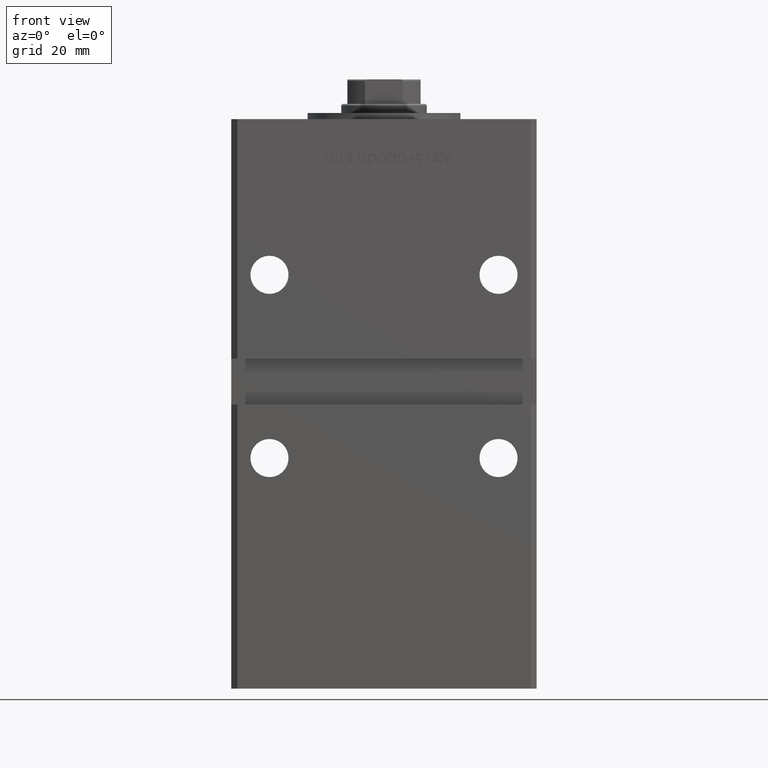
[diagram: clean part render]
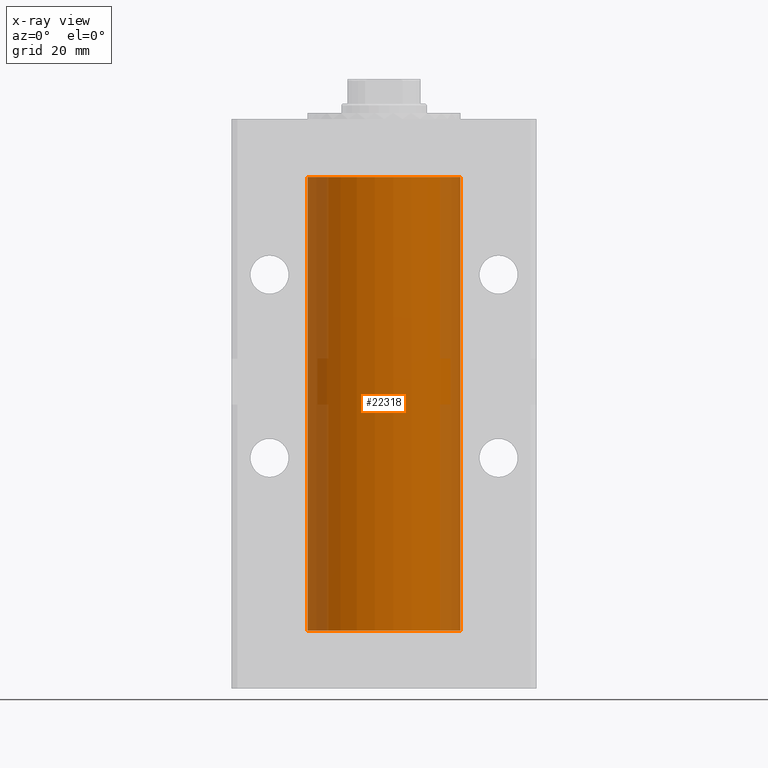
[diagram: x-ray — body ghosted, one internal face saturated and labeled with its STEP entity id]
A machine part, front view, then the same camera in x-ray: the body is ghosted and one INTERNAL B-rep face — a face not visible from any outside direction — is saturated and labeled: STEP entity #22318.
In plain terms, the highlighted cylindrical surface (partial cylindrical patch) has radius 25 mm, axis along (-0, -0, -1).
Its self-contained STEP definition (entity closure, byte-faithful):
#79 = CARTESIAN_POINT ( 'NONE',  ( -25.00000000000000000, 0.000000000000000000, 148.5000000000000000 ) ) ;
#316 = DIRECTION ( 'NONE',  ( 1.000000000000000000, 0.000000000000000000, 0.000000000000000000 ) ) ;
#2840 = VERTEX_POINT ( 'NONE', #21212 ) ;
#3447 = EDGE_CURVE ( 'NONE', #33574, #38850, #49576, .T. ) ;
#5755 = VECTOR ( 'NONE', #40975, 1000.000000000000000 ) ;
#6599 = CARTESIAN_POINT ( 'NONE',  ( 25.00000000000000000, 3.061616997868383043E-15, 0.000000000000000000 ) ) ;
#7362 = CYLINDRICAL_SURFACE ( 'NONE', #50089, 25.00000000000000000 ) ;
#8833 = CARTESIAN_POINT ( 'NONE',  ( 25.00000000000000000, 3.061616997868383043E-15, 148.5000000000000000 ) ) ;
#11653 = EDGE_LOOP ( 'NONE', ( #51973, #40036, #37068, #49654 ) ) ;
#12623 = LINE ( 'NONE', #8833, #35769 ) ;
#15942 = DIRECTION ( 'NONE',  ( -1.000000000000000000, 0.000000000000000000, 0.000000000000000000 ) ) ;
#17751 = AXIS2_PLACEMENT_3D ( 'NONE', #45518, #41468, #316 ) ;
#19187 = AXIS2_PLACEMENT_3D ( 'NONE', #30688, #47123, #27967 ) ;
#21212 = CARTESIAN_POINT ( 'NONE',  ( 25.00000000000000000, 3.061616997868383043E-15, 148.5000000000000000 ) ) ;
#22318 = ADVANCED_FACE ( 'NONE', ( #32072 ), #7362, .F. ) ;
#23750 = CARTESIAN_POINT ( 'NONE',  ( 0.000000000000000000, 0.000000000000000000, 148.5000000000000000 ) ) ;
#24351 = CARTESIAN_POINT ( 'NONE',  ( -25.00000000000000000, 0.000000000000000000, 0.000000000000000000 ) ) ;
#27518 = DIRECTION ( 'NONE',  ( -0.000000000000000000, -0.000000000000000000, -1.000000000000000000 ) ) ;
#27967 = DIRECTION ( 'NONE',  ( 1.000000000000000000, 0.000000000000000000, 0.000000000000000000 ) ) ;
#30688 = CARTESIAN_POINT ( 'NONE',  ( 0.000000000000000000, 0.000000000000000000, 148.5000000000000000 ) ) ;
#32072 = FACE_OUTER_BOUND ( 'NONE', #11653, .T. ) ;
#33150 = LINE ( 'NONE', #79, #5755 ) ;
#33574 = VERTEX_POINT ( 'NONE', #24351 ) ;
#33969 = EDGE_CURVE ( 'NONE', #49245, #33574, #33150, .T. ) ;
#35769 = VECTOR ( 'NONE', #44622, 1000.000000000000000 ) ;
#37068 = ORIENTED_EDGE ( 'NONE', *, *, #3447, .F. ) ;
#38461 = CARTESIAN_POINT ( 'NONE',  ( -25.00000000000000000, 0.000000000000000000, 148.5000000000000000 ) ) ;
#38850 = VERTEX_POINT ( 'NONE', #6599 ) ;
#40036 = ORIENTED_EDGE ( 'NONE', *, *, #51879, .T. ) ;
#40975 = DIRECTION ( 'NONE',  ( -0.000000000000000000, -0.000000000000000000, -1.000000000000000000 ) ) ;
#41468 = DIRECTION ( 'NONE',  ( -0.000000000000000000, 0.000000000000000000, 1.000000000000000000 ) ) ;
#44022 = EDGE_CURVE ( 'NONE', #49245, #2840, #44109, .T. ) ;
#44109 = CIRCLE ( 'NONE', #19187, 25.00000000000000000 ) ;
#44622 = DIRECTION ( 'NONE',  ( -0.000000000000000000, -0.000000000000000000, -1.000000000000000000 ) ) ;
#45518 = CARTESIAN_POINT ( 'NONE',  ( 0.000000000000000000, 0.000000000000000000, 0.000000000000000000 ) ) ;
#47123 = DIRECTION ( 'NONE',  ( -0.000000000000000000, 0.000000000000000000, 1.000000000000000000 ) ) ;
#49245 = VERTEX_POINT ( 'NONE', #38461 ) ;
#49576 = CIRCLE ( 'NONE', #17751, 25.00000000000000000 ) ;
#49654 = ORIENTED_EDGE ( 'NONE', *, *, #33969, .F. ) ;
#50089 = AXIS2_PLACEMENT_3D ( 'NONE', #23750, #27518, #15942 ) ;
#51879 = EDGE_CURVE ( 'NONE', #2840, #38850, #12623, .T. ) ;
#51973 = ORIENTED_EDGE ( 'NONE', *, *, #44022, .T. ) ;